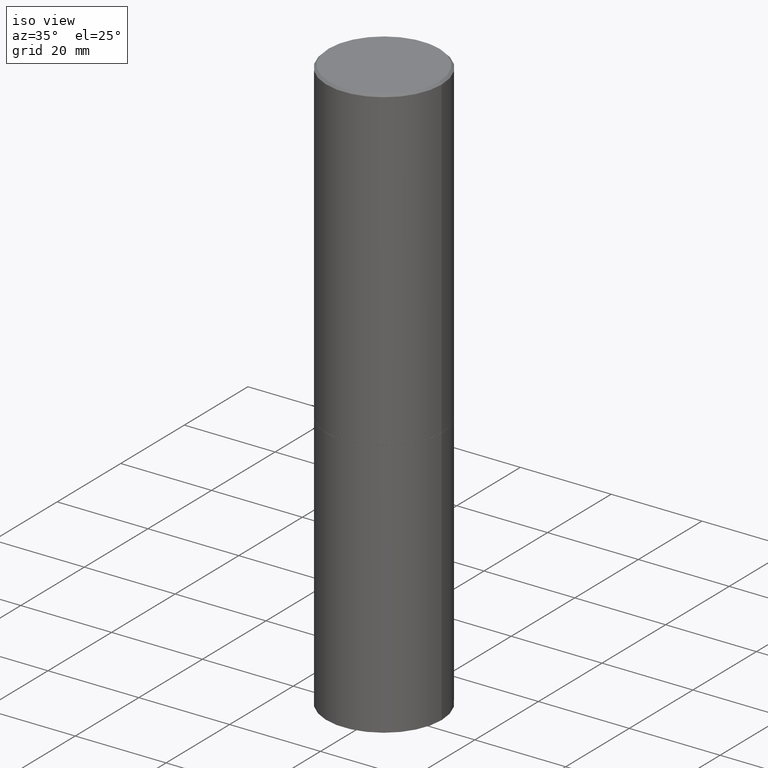
[diagram: clean part render]
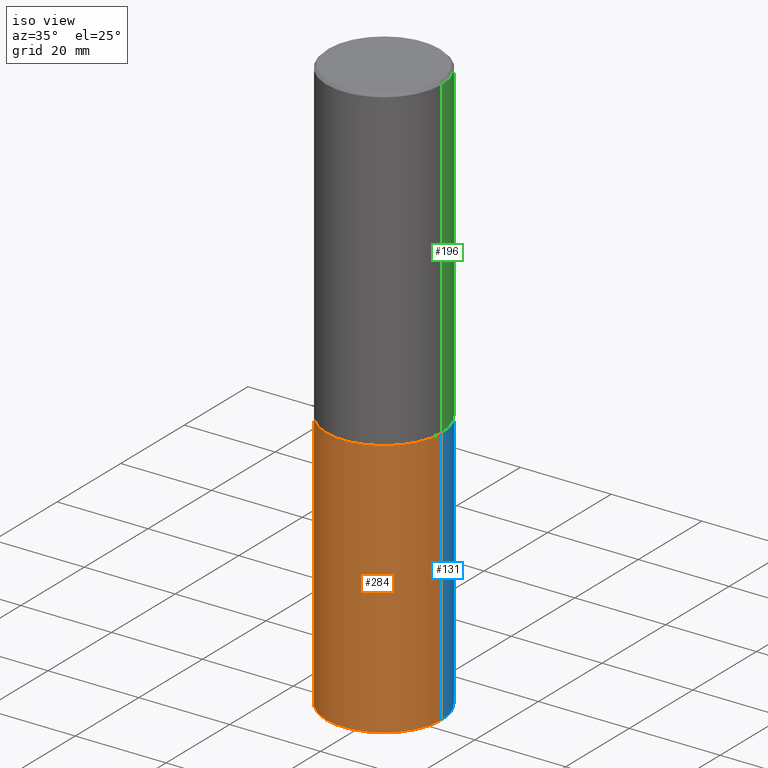
[diagram: same view with three faces highlighted in distinct colors, each labeled with its STEP entity id]
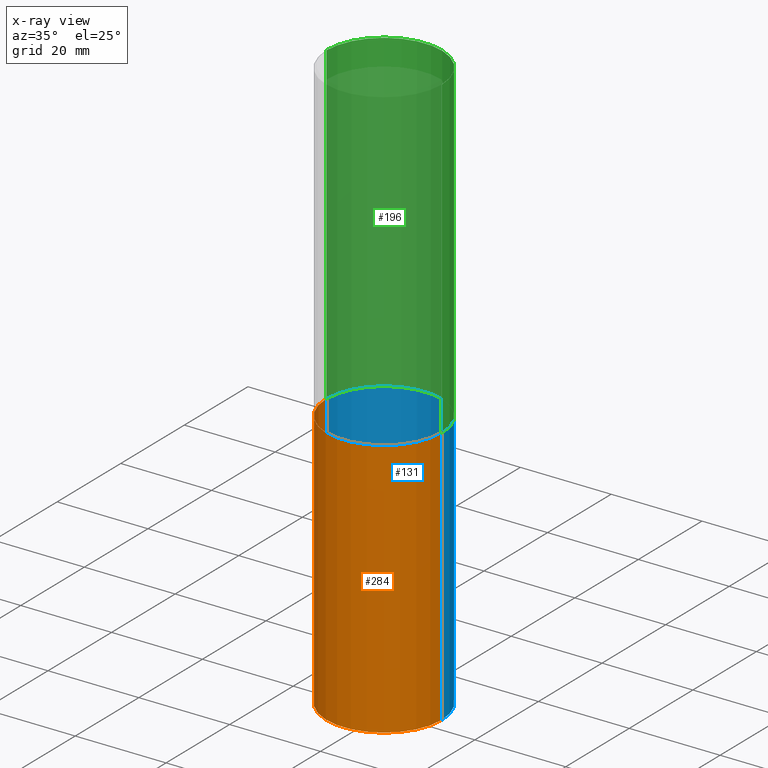
[diagram: x-ray of the same camera — body ghosted, the three highlighted faces saturated]
A machine part, iso view with three faces highlighted in distinct colors.
The next image is the same camera in x-ray (body ghosted, the three faces saturated) — at least one of them is partly hidden behind the body in this view.
Their STEP definitions:

[orange] entity #284 — the highlighted cylindrical surface (partial cylindrical patch) has radius 12.7 mm, axis along (-0, 0, 1).
#7 = CARTESIAN_POINT ( 'NONE',  ( 6.725039217009124520E-29, -9.601573681818649859E-15, -2.750000000000000000 ) ) ;
#8 = CARTESIAN_POINT ( 'NONE',  ( -0.5000000000000000000, 3.552713678800500929E-15, -2.459467545127452891E-29 ) ) ;
#9 = CARTESIAN_POINT ( 'NONE',  ( -0.5000000000000000000, -9.976776509216688154E-15, -5.000000000000000000 ) ) ;
#10 = EDGE_CURVE ( 'NONE', #327, #366, #241, .T. ) ;
#35 = CARTESIAN_POINT ( 'NONE',  ( 0.5000000000000000000, -3.491481338843133355E-15, 2.438088387897967896E-29 ) ) ;
#36 = EDGE_CURVE ( 'NONE', #108, #327, #148, .T. ) ;
#50 = CARTESIAN_POINT ( 'NONE',  ( 0.5000000000000000000, -1.309305502066178321E-14, -2.750000000000000000 ) ) ;
#66 = DIRECTION ( 'NONE',  ( -2.445468806185136877E-29, 3.491481338843145188E-15, 1.000000000000000000 ) ) ;
#78 = CYLINDRICAL_SURFACE ( 'NONE', #203, 0.5000000000000000000 ) ;
#80 = DIRECTION ( 'NONE',  ( -2.445468806185136597E-29, 3.491481338843145583E-15, 1.000000000000000000 ) ) ;
#101 = EDGE_CURVE ( 'NONE', #125, #366, #223, .T. ) ;
#105 = FACE_OUTER_BOUND ( 'NONE', #111, .T. ) ;
#108 = VERTEX_POINT ( 'NONE', #9 ) ;
#111 = EDGE_LOOP ( 'NONE', ( #189, #242, #362, #227 ) ) ;
#125 = VERTEX_POINT ( 'NONE', #238 ) ;
#141 = LINE ( 'NONE', #8, #156 ) ;
#147 = DIRECTION ( 'NONE',  ( -2.445468806185136597E-29, 3.491481338843145583E-15, 1.000000000000000000 ) ) ;
#148 = CIRCLE ( 'NONE', #191, 0.5000000000000000000 ) ;
#156 = VECTOR ( 'NONE', #66, 39.37007874015748143 ) ;
#179 = VECTOR ( 'NONE', #275, 39.37007874015748143 ) ;
#189 = ORIENTED_EDGE ( 'NONE', *, *, #193, .F. ) ;
#191 = AXIS2_PLACEMENT_3D ( 'NONE', #206, #328, #331 ) ;
#193 = EDGE_CURVE ( 'NONE', #108, #125, #141, .T. ) ;
#200 = CARTESIAN_POINT ( 'NONE',  ( 0.5000000000000000000, -2.094888803305886324E-14, -5.000000000000000000 ) ) ;
#203 = AXIS2_PLACEMENT_3D ( 'NONE', #280, #80, #365 ) ;
#206 = CARTESIAN_POINT ( 'NONE',  ( 1.222734403092568523E-28, -1.745740669421572989E-14, -5.000000000000000000 ) ) ;
#209 = DIRECTION ( 'NONE',  ( 1.000000000000000000, -6.982962677686266711E-15, 0.000000000000000000 ) ) ;
#223 = CIRCLE ( 'NONE', #251, 0.5000000000000000000 ) ;
#227 = ORIENTED_EDGE ( 'NONE', *, *, #101, .F. ) ;
#238 = CARTESIAN_POINT ( 'NONE',  ( -0.5000000000000000000, -9.976776509216688154E-15, -2.750000000000000000 ) ) ;
#241 = LINE ( 'NONE', #35, #179 ) ;
#242 = ORIENTED_EDGE ( 'NONE', *, *, #36, .T. ) ;
#251 = AXIS2_PLACEMENT_3D ( 'NONE', #7, #147, #209 ) ;
#275 = DIRECTION ( 'NONE',  ( -2.445468806185136877E-29, 3.491481338843145188E-15, 1.000000000000000000 ) ) ;
#280 = CARTESIAN_POINT ( 'NONE',  ( 0.000000000000000000, 0.000000000000000000, 0.000000000000000000 ) ) ;
#284 = ADVANCED_FACE ( 'NONE', ( #105 ), #78, .T. ) ;
#327 = VERTEX_POINT ( 'NONE', #200 ) ;
#328 = DIRECTION ( 'NONE',  ( -2.445468806185136597E-29, 3.491481338843145583E-15, 1.000000000000000000 ) ) ;
#331 = DIRECTION ( 'NONE',  ( 1.000000000000000000, -6.982962677686266711E-15, 0.000000000000000000 ) ) ;
#362 = ORIENTED_EDGE ( 'NONE', *, *, #10, .T. ) ;
#365 = DIRECTION ( 'NONE',  ( 1.000000000000000000, -6.982962677686266711E-15, 4.876176775795935793E-29 ) ) ;
#366 = VERTEX_POINT ( 'NONE', #50 ) ;

[blue] entity #131 — the highlighted cylindrical surface (partial cylindrical patch) has radius 12.7 mm, axis along (-0, 0, 1).
#2 = CYLINDRICAL_SURFACE ( 'NONE', #53, 0.5000000000000000000 ) ;
#8 = CARTESIAN_POINT ( 'NONE',  ( -0.5000000000000000000, 3.552713678800500929E-15, -2.459467545127452891E-29 ) ) ;
#9 = CARTESIAN_POINT ( 'NONE',  ( -0.5000000000000000000, -9.976776509216688154E-15, -5.000000000000000000 ) ) ;
#10 = EDGE_CURVE ( 'NONE', #327, #366, #241, .T. ) ;
#11 = CARTESIAN_POINT ( 'NONE',  ( 1.222734403092568523E-28, -1.745740669421572989E-14, -5.000000000000000000 ) ) ;
#14 = DIRECTION ( 'NONE',  ( 1.000000000000000000, -6.982962677686266711E-15, 0.000000000000000000 ) ) ;
#16 = EDGE_CURVE ( 'NONE', #327, #108, #132, .T. ) ;
#27 = EDGE_CURVE ( 'NONE', #366, #125, #350, .T. ) ;
#35 = CARTESIAN_POINT ( 'NONE',  ( 0.5000000000000000000, -3.491481338843133355E-15, 2.438088387897967896E-29 ) ) ;
#50 = CARTESIAN_POINT ( 'NONE',  ( 0.5000000000000000000, -1.309305502066178321E-14, -2.750000000000000000 ) ) ;
#53 = AXIS2_PLACEMENT_3D ( 'NONE', #344, #265, #134 ) ;
#66 = DIRECTION ( 'NONE',  ( -2.445468806185136877E-29, 3.491481338843145188E-15, 1.000000000000000000 ) ) ;
#84 = DIRECTION ( 'NONE',  ( 1.000000000000000000, -6.982962677686266711E-15, 0.000000000000000000 ) ) ;
#108 = VERTEX_POINT ( 'NONE', #9 ) ;
#122 = DIRECTION ( 'NONE',  ( -2.445468806185136597E-29, 3.491481338843145583E-15, 1.000000000000000000 ) ) ;
#125 = VERTEX_POINT ( 'NONE', #238 ) ;
#131 = ADVANCED_FACE ( 'NONE', ( #315 ), #2, .T. ) ;
#132 = CIRCLE ( 'NONE', #258, 0.5000000000000000000 ) ;
#134 = DIRECTION ( 'NONE',  ( 1.000000000000000000, -6.982962677686266711E-15, 4.876176775795935793E-29 ) ) ;
#141 = LINE ( 'NONE', #8, #156 ) ;
#143 = DIRECTION ( 'NONE',  ( -2.445468806185136597E-29, 3.491481338843145583E-15, 1.000000000000000000 ) ) ;
#155 = ORIENTED_EDGE ( 'NONE', *, *, #10, .F. ) ;
#156 = VECTOR ( 'NONE', #66, 39.37007874015748143 ) ;
#166 = EDGE_LOOP ( 'NONE', ( #310, #232, #282, #155 ) ) ;
#179 = VECTOR ( 'NONE', #275, 39.37007874015748143 ) ;
#193 = EDGE_CURVE ( 'NONE', #108, #125, #141, .T. ) ;
#197 = AXIS2_PLACEMENT_3D ( 'NONE', #249, #122, #84 ) ;
#200 = CARTESIAN_POINT ( 'NONE',  ( 0.5000000000000000000, -2.094888803305886324E-14, -5.000000000000000000 ) ) ;
#232 = ORIENTED_EDGE ( 'NONE', *, *, #193, .T. ) ;
#238 = CARTESIAN_POINT ( 'NONE',  ( -0.5000000000000000000, -9.976776509216688154E-15, -2.750000000000000000 ) ) ;
#241 = LINE ( 'NONE', #35, #179 ) ;
#249 = CARTESIAN_POINT ( 'NONE',  ( 6.725039217009124520E-29, -9.601573681818649859E-15, -2.750000000000000000 ) ) ;
#258 = AXIS2_PLACEMENT_3D ( 'NONE', #11, #143, #14 ) ;
#265 = DIRECTION ( 'NONE',  ( -2.445468806185136597E-29, 3.491481338843145583E-15, 1.000000000000000000 ) ) ;
#275 = DIRECTION ( 'NONE',  ( -2.445468806185136877E-29, 3.491481338843145188E-15, 1.000000000000000000 ) ) ;
#282 = ORIENTED_EDGE ( 'NONE', *, *, #27, .F. ) ;
#310 = ORIENTED_EDGE ( 'NONE', *, *, #16, .T. ) ;
#315 = FACE_OUTER_BOUND ( 'NONE', #166, .T. ) ;
#327 = VERTEX_POINT ( 'NONE', #200 ) ;
#344 = CARTESIAN_POINT ( 'NONE',  ( 0.000000000000000000, 0.000000000000000000, 0.000000000000000000 ) ) ;
#350 = CIRCLE ( 'NONE', #197, 0.5000000000000000000 ) ;
#366 = VERTEX_POINT ( 'NONE', #50 ) ;

[green] entity #196 — the highlighted cylindrical surface (partial cylindrical patch) has radius 12.7 mm, axis along (-0, 0, 1).
#5 = DIRECTION ( 'NONE',  ( 1.000000000000000000, -6.982962677686266711E-15, 0.000000000000000000 ) ) ;
#13 = CARTESIAN_POINT ( 'NONE',  ( 0.000000000000000000, 0.000000000000000000, 0.000000000000000000 ) ) ;
#18 = CIRCLE ( 'NONE', #244, 0.4999999999999996114 ) ;
#26 = VECTOR ( 'NONE', #64, 39.37007874015748143 ) ;
#37 = DIRECTION ( 'NONE',  ( -2.445468806185136597E-29, 3.491481338843145583E-15, 1.000000000000000000 ) ) ;
#41 = CARTESIAN_POINT ( 'NONE',  ( -0.4999999999999996114, 3.421651712066267296E-15, -0.02000000000000010797 ) ) ;
#49 = VERTEX_POINT ( 'NONE', #61 ) ;
#54 = DIRECTION ( 'NONE',  ( -2.445468806185136877E-29, 3.491481338843145188E-15, 1.000000000000000000 ) ) ;
#59 = VECTOR ( 'NONE', #54, 39.37007874015748143 ) ;
#61 = CARTESIAN_POINT ( 'NONE',  ( 0.5000000000000001110, -1.308956353932294179E-14, -2.749000000000000110 ) ) ;
#64 = DIRECTION ( 'NONE',  ( -2.445468806185136877E-29, 3.491481338843145188E-15, 1.000000000000000000 ) ) ;
#67 = DIRECTION ( 'NONE',  ( 1.000000000000000000, -6.982962677686265133E-15, 0.000000000000000000 ) ) ;
#71 = EDGE_LOOP ( 'NONE', ( #73, #169, #96, #192 ) ) ;
#73 = ORIENTED_EDGE ( 'NONE', *, *, #77, .T. ) ;
#74 = AXIS2_PLACEMENT_3D ( 'NONE', #13, #120, #89 ) ;
#77 = EDGE_CURVE ( 'NONE', #49, #259, #164, .T. ) ;
#89 = DIRECTION ( 'NONE',  ( 1.000000000000000000, -6.982962677686267499E-15, 4.876176775795936353E-29 ) ) ;
#93 = EDGE_CURVE ( 'NONE', #259, #149, #217, .T. ) ;
#96 = ORIENTED_EDGE ( 'NONE', *, *, #220, .F. ) ;
#120 = DIRECTION ( 'NONE',  ( -2.445468806185136597E-29, 3.491481338843145583E-15, 1.000000000000000000 ) ) ;
#142 = CARTESIAN_POINT ( 'NONE',  ( -0.4999999999999998335, 3.552713678800499746E-15, -2.459467545127452330E-29 ) ) ;
#149 = VERTEX_POINT ( 'NONE', #41 ) ;
#164 = CIRCLE ( 'NONE', #170, 0.5000000000000001110 ) ;
#169 = ORIENTED_EDGE ( 'NONE', *, *, #93, .T. ) ;
#170 = AXIS2_PLACEMENT_3D ( 'NONE', #246, #243, #67 ) ;
#188 = FACE_OUTER_BOUND ( 'NONE', #71, .T. ) ;
#192 = ORIENTED_EDGE ( 'NONE', *, *, #240, .F. ) ;
#196 = ADVANCED_FACE ( 'NONE', ( #188 ), #291, .T. ) ;
#198 = VERTEX_POINT ( 'NONE', #323 ) ;
#217 = LINE ( 'NONE', #142, #26 ) ;
#220 = EDGE_CURVE ( 'NONE', #198, #149, #18, .T. ) ;
#229 = CARTESIAN_POINT ( 'NONE',  ( 0.4999999999999998335, -3.491481338843132566E-15, 2.438088387897967336E-29 ) ) ;
#240 = EDGE_CURVE ( 'NONE', #49, #198, #364, .T. ) ;
#243 = DIRECTION ( 'NONE',  ( -2.445468806185136597E-29, 3.491481338843145583E-15, 1.000000000000000000 ) ) ;
#244 = AXIS2_PLACEMENT_3D ( 'NONE', #267, #37, #5 ) ;
#246 = CARTESIAN_POINT ( 'NONE',  ( 6.722593748202941159E-29, -9.598082200479808430E-15, -2.749000000000000110 ) ) ;
#259 = VERTEX_POINT ( 'NONE', #311 ) ;
#267 = CARTESIAN_POINT ( 'NONE',  ( 4.890937612370299433E-31, -6.982962677686328587E-17, -0.02000000000000010797 ) ) ;
#291 = CYLINDRICAL_SURFACE ( 'NONE', #74, 0.4999999999999998335 ) ;
#311 = CARTESIAN_POINT ( 'NONE',  ( -0.5000000000000001110, -1.281242234827831779E-15, -2.749000000000000110 ) ) ;
#323 = CARTESIAN_POINT ( 'NONE',  ( 0.4999999999999996114, -3.500078625662626318E-15, -0.02000000000000010797 ) ) ;
#364 = LINE ( 'NONE', #229, #59 ) ;